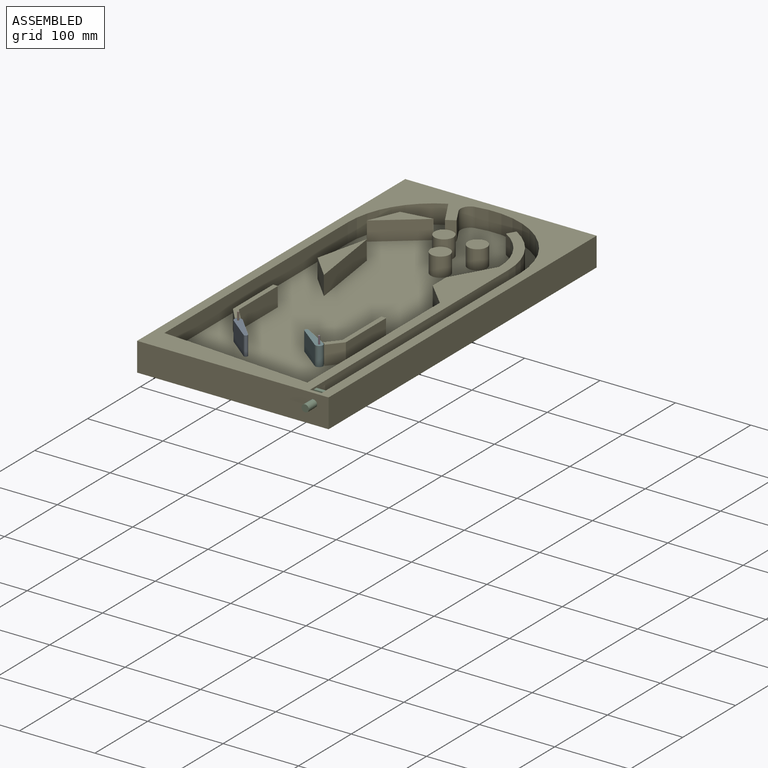
[diagram: assembled view]
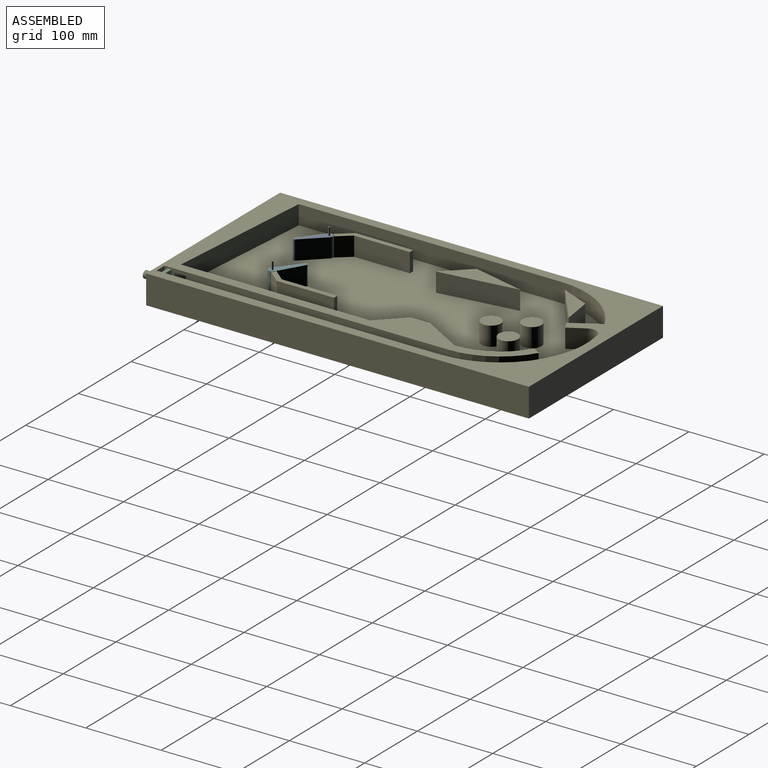
[diagram: assembled view, second angle]
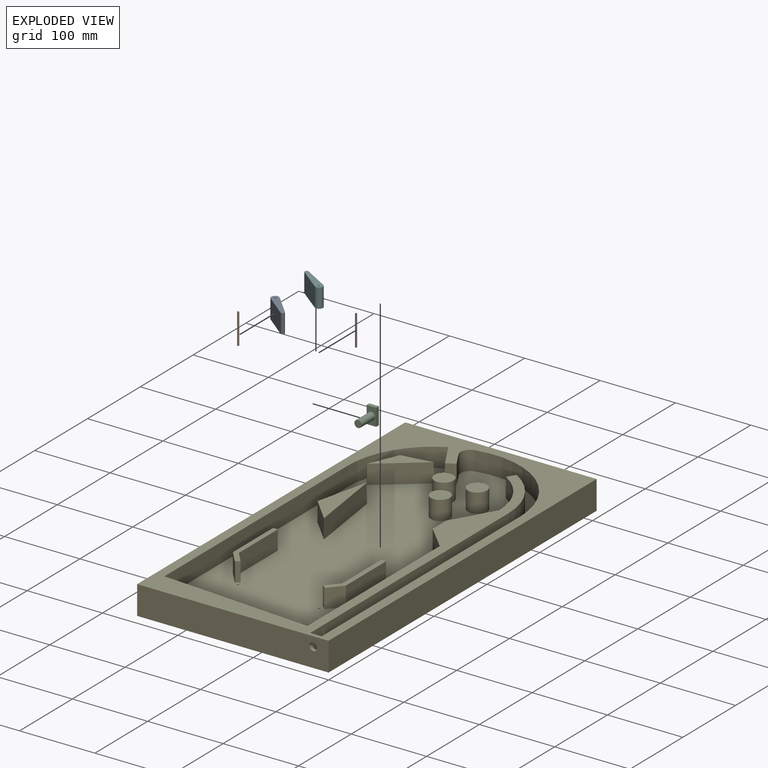
[diagram: exploded view]
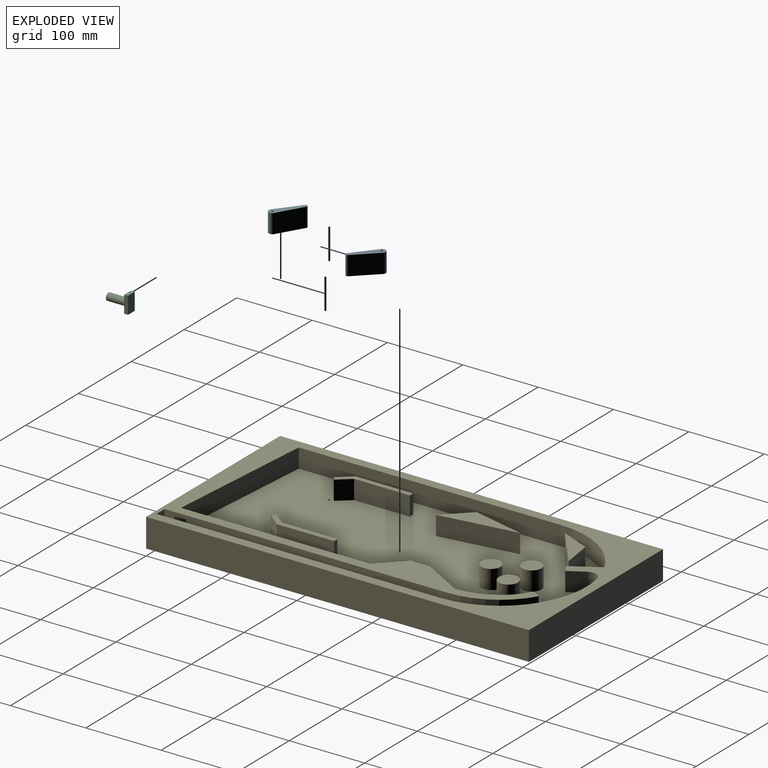
[diagram: exploded view, second angle]
ASSEMBLY  parts=6 mates=6
PART A: 7 faces, bbox 45.7x10.2x25.4 mm
  f0: plane 38.1x25.4mm, normal (0,-1,0), area 967.7mm2, adj f1,f3,f4,f5
  f1: cylinder r=5.08mm len=25.4mm, axis (0,0,-1), area 405.4mm2, adj f0,f2,f4,f5
  f2: plane 38.43x25.4mm, normal (-0.13,0.99,0), area 984.8mm2, adj f1,f3,f4,f5
  f3: cylinder r=2.54mm len=25.4mm, axis (0,0,-1), area 194.2mm2, adj f0,f2,f4,f5
  f4: plane 45.72x10.16mm, normal (0,0,1), area 336.4mm2, adj f0,f1,f2,f3,f6
  f5: plane 45.72x10.16mm, normal (0,0,-1), area 336.4mm2, adj f0,f1,f2,f3,f6
  f6: cylinder r=1.27mm len=25.4mm, axis (0,0,-1), area 202.7mm2, adj f4,f5
PART B: 3 faces, bbox 2.3x2.3x40.6 mm
  f0: cylinder r=1.14mm len=40.64mm, axis (0,0,-1), area 291.9mm2, adj f1,f2
  f1: plane 2.29x2.29mm, normal (0,0,1), area 4.1mm2, adj f0
  f2: plane 2.29x2.29mm, normal (0,0,-1), area 4.1mm2, adj f0
PART C: 8 faces, bbox 12.7x30.5x22.9 mm
  f0: cylinder r=4.83mm len=25.4mm, axis (0,-1,0), area 770.2mm2, adj f1,f7
  f1: plane 9.65x9.65mm, normal (0,-1,0), area 73.2mm2, adj f0
  f2: plane 12.7x5.08mm, normal (0,0,1), area 64.5mm2, adj f3,f5,f6,f7
  f3: plane 22.86x5.08mm, normal (1,0,0), area 116.1mm2, adj f2,f4,f6,f7
  f4: plane 12.7x5.08mm, normal (0,0,-1), area 64.5mm2, adj f3,f5,f6,f7
  f5: plane 22.86x5.08mm, normal (-1,0,0), area 116.1mm2, adj f2,f4,f6,f7
  f6: plane 22.86x12.7mm, normal (0,1,0), area 290.3mm2, adj f2,f3,f4,f5
  f7: plane 22.86x12.7mm, normal (0,-1,0), area 217.2mm2, adj f0,f2,f3,f4,f5
PART D: same geometry as B
PART E: 62 faces, bbox 254x508x38.1 mm
  f0: plane 25.4x16.97mm, normal (-0.77,0.64,0), area 562.5mm2, adj f2,f6,f26,f59
  f1: plane 25.4x18.74mm, normal (0.77,-0.64,0), area 621.2mm2, adj f2,f6,f27,f59
  f2: plane 94.94x20.59mm, normal (0,0,1), area 620.4mm2, adj f0,f1,f26,f27,f28,f59
  f3: plane 25.4x18.74mm, normal (-0.77,-0.64,0), area 621.2mm2, adj f5,f6,f35,f58
  f4: plane 25.4x16.97mm, normal (0.77,0.64,0), area 562.5mm2, adj f5,f6,f36,f58
  f5: plane 94.94x20.59mm, normal (0,0,1), area 620.4mm2, adj f3,f4,f35,f36,f37,f58
  f6: plane 490.22x228.6mm, normal (0,0,1), area 88696.7mm2, adj f0,f1,f3,f4,f7,f8,f9,f10
  f7: plane 347.43x25.4mm, normal (1,0,0), area 8824.7mm2, adj f6,f11,f18,f47
  f8: plane 235.84x25.4mm, normal (-1,0,0), area 5990.3mm2, adj f6,f11,f39,f42
  f9: plane 375.92x25.4mm, normal (1,0,0), area 9316.1mm2, adj f6,f11,f19,f38,f39,f52,f53,f61
  f10: cylinder r=114.3mm len=138.4mm, axis (0,0,1), area 5177.1mm2, adj f6,f11,f17,f25
  f11: plane 508x254mm, normal (0,0,1), area 35482.3mm2, adj f7,f8,f9,f10,f12,f13,f14,f15
  f12: plane 254x38.1mm, normal (0,-1,0), area 9596.3mm2, adj f11,f13,f15,f16,f60
  f13: plane 508x38.1mm, normal (1,0,0), area 19354.8mm2, adj f11,f12,f14,f16
  f14: plane 254x38.1mm, normal (0,1,0), area 9677.4mm2, adj f11,f13,f15,f16
  f15: plane 508x38.1mm, normal (-1,0,0), area 19354.8mm2, adj f11,f12,f14,f16
  f16: plane 508x254mm, normal (0,0,-1), area 129032mm2, adj f12,f13,f14,f15
  f17: plane 375.92x25.4mm, normal (-1,0,0), area 9548.4mm2, adj f6,f10,f11,f61
  f18: cylinder r=114.3mm len=101.72mm, axis (0,0,1), area 3185.2mm2, adj f6,f7,f11,f22
  f19: cylinder r=99.06mm len=85.79mm, axis (0,0,-1), area 2634.9mm2, adj f6,f9,f11,f20
  f20: plane 25.4x11mm, normal (-0.87,0.5,0), area 322.6mm2, adj f6,f11,f19,f21
  f21: cylinder r=86.36mm len=74.79mm, axis (0,0,-1), area 2297.1mm2, adj f6,f11,f20,f40
  f22: plane 36.06x25.4mm, normal (-0.87,-0.5,0), area 1057.6mm2, adj f6,f11,f18,f24
  f23: plane 25.4x20.96mm, normal (0.87,0.5,0), area 614.7mm2, adj f6,f11,f24,f25
  f24: plane 25.4x11mm, normal (0.5,-0.87,0), area 322.6mm2, adj f6,f11,f22,f23
  f25: cylinder r=12.7mm len=25.4mm, axis (0,0,1), area 607.1mm2, adj f6,f10,f11,f23
  f26: plane 73.89x25.4mm, normal (-1,0,0), area 1876.8mm2, adj f0,f2,f6,f28
  f27: plane 76.2x25.4mm, normal (1,0,0), area 1935.5mm2, adj f1,f2,f6,f28
  f28: plane 25.4x6.35mm, normal (0,1,0), area 161.3mm2, adj f2,f6,f26,f27
  f29: cylinder r=12.7mm len=25.4mm, axis (0,0,-1), area 2026.8mm2, adj f6,f30
  f30: plane 25.4x25.4mm, normal (0,0,1), area 506.7mm2, adj f29
  f31: cylinder r=12.7mm len=25.4mm, axis (0,0,-1), area 2026.8mm2, adj f6,f32
  f32: plane 25.4x25.4mm, normal (0,0,1), area 506.7mm2, adj f31
  f33: cylinder r=12.7mm len=25.4mm, axis (0,0,-1), area 2026.8mm2, adj f6,f34
  f34: plane 25.4x25.4mm, normal (0,0,1), area 506.7mm2, adj f33
  f35: plane 76.2x25.4mm, normal (-1,0,0), area 1935.5mm2, adj f3,f5,f6,f37
  f36: plane 73.89x25.4mm, normal (1,0,0), area 1876.8mm2, adj f4,f5,f6,f37
  f37: plane 25.4x6.35mm, normal (0,1,0), area 161.3mm2, adj f5,f6,f35,f36
  f38: plane 25.4x12.7mm, normal (0,1,0), area 258.1mm2, adj f9,f47,f52,f53
  f39: plane 25.4x12.7mm, normal (0,-1,0), area 258.1mm2, adj f8,f9,f52,f53
  f40: plane 54.99x31.75mm, normal (-0.87,0.5,0), area 1612.9mm2, adj f6,f11,f21,f41
  f41: plane 25.4x25.4mm, normal (-1,0,0), area 645.2mm2, adj f6,f11,f40,f42
  f42: plane 31.75x31.75mm, normal (-0.71,-0.71,0), area 1140.5mm2, adj f6,f8,f11,f41
  f43: cylinder r=1.27mm len=5.08mm, axis (0,0,1), area 40.5mm2, adj f6,f44
  f44: plane 2.54x2.54mm, normal (0,0,1), area 5.1mm2, adj f43
  f45: cylinder r=1.27mm len=5.08mm, axis (0,0,1), area 40.5mm2, adj f6,f46
  f46: plane 2.54x2.54mm, normal (0,0,1), area 5.1mm2, adj f45
  f47: plane 200.66x25.4mm, normal (0.08,1,0), area 5112.5mm2, adj f6,f7,f11,f38
  f48: plane 40.11x25.4mm, normal (-0.15,0.99,0), area 1029.7mm2, adj f6,f49,f50,f51
  f49: plane 39.02x25.4mm, normal (-0.92,0.4,0), area 1079.6mm2, adj f6,f48,f50,f51
  f50: plane 56.95x44.93mm, normal (0.62,-0.79,0), area 1842.5mm2, adj f6,f48,f49,f51
  f51: plane 56.95x44.93mm, normal (0,0,1), area 732.7mm2, adj f48,f49,f50
  f52: plane 15.24x12.7mm, normal (-0.37,0,0.93), area 208.5mm2, adj f6,f9,f38,f39
  f53: plane 15.24x12.7mm, normal (-0.37,0,-0.93), area 208.5mm2, adj f9,f11,f38,f39
  f54: plane 101.8x25.4mm, normal (0.99,0.14,0), area 2611mm2, adj f6,f55,f56,f57
  f55: plane 69.52x25.4mm, normal (-0.97,0.23,0), area 1816.4mm2, adj f6,f54,f56,f57
  f56: plane 32.28x31.04mm, normal (-0.72,-0.69,0), area 1137.4mm2, adj f6,f54,f55,f57
  f57: plane 101.8x31.04mm, normal (0,0,1), area 1349.3mm2, adj f54,f55,f56
  f58: cylinder r=5.71mm len=25.4mm, axis (0,0,-1), area 171mm2, adj f3,f4,f5,f6
  f59: cylinder r=5.71mm len=25.4mm, axis (0,0,-1), area 171mm2, adj f0,f1,f2,f6
  f60: cylinder r=5.08mm len=10.16mm, axis (0,1,0), area 162.1mm2, adj f12,f61
  f61: plane 25.4x15.24mm, normal (0,1,0), area 306mm2, adj f6,f9,f11,f17,f60
PART F: same geometry as A
PLACE A rot(axis=(0,0,1),133.8deg) t=(-194.69,106.66,12.7)mm
PLACE B t=(-194.69,106.66,7.62)mm
PLACE C t=(-20.32,-15.24,25.4)mm
PLACE D t=(-87.25,106.66,7.62)mm
PLACE E at identity
PLACE F rot(axis=(0,0,-1),37.9deg) t=(-87.25,106.66,12.7)mm
MATE parallel C.f3 <-> E.f17  axis (1,0,0) through (-13.97,12.7,25.4)mm
MATE slider C.f0 <-> E.f60  axis (0,-1,0) through (-20.32,-2.54,25.4)mm
MATE revolute A.f1 <-> E.f45  axis (0,0,-1) through (-194.69,106.66,12.7)mm
MATE cylindrical D.f0 <-> E.f43  axis (0,0,-1) through (-87.25,106.66,7.62)mm
MATE cylindrical B.f0 <-> E.f45  axis (0,0,-1) through (-194.69,106.66,7.62)mm
MATE revolute F.f1 <-> E.f43  axis (0,0,-1) through (-87.25,106.66,12.7)mm
